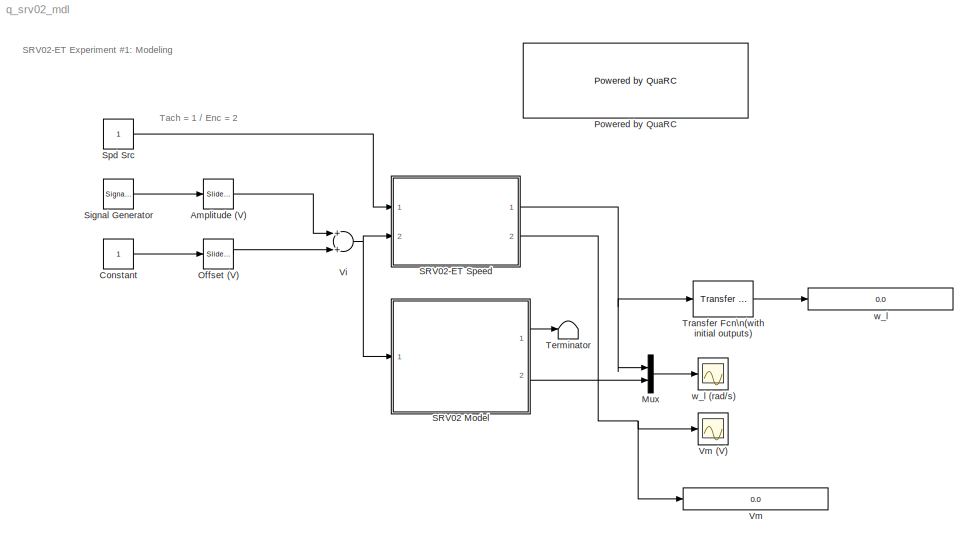
MODEL q_srv02_mdl
KIND model
BLOCK [Reference] Amplitude (V)  REF=simulink/Math\nOperations/Slider\nGain
  FunctionWithSeparateData = off
  Ports = [1, 1]
  RTWMemSecDataConstants = Inherit from model
  RTWMemSecDataInternal = Inherit from model
  RTWMemSecDataParameters = Inherit from model
  RTWMemSecFuncExecute = Inherit from model
  RTWMemSecFuncInitTerm = Inherit from model
  ShowPortLabels = FromPortIcon
  SourceBlock = simulink/Math\nOperations/Slider\nGain
  SourceType = Slider Gain
  SystemSampleTime = -1
  gain = 0
  high = 5
  low = 0
BLOCK [Constant] Constant
  OutDataType = sfix(16)
  OutScaling = 2^0
BLOCK [Mux] Mux
  DisplayOption = bar
  Inputs = 2
  Ports = [2, 1]
BLOCK [Reference] Offset (V)  REF=simulink/Math\nOperations/Slider\nGain
  FunctionWithSeparateData = off
  Ports = [1, 1]
  RTWMemSecDataConstants = Inherit from model
  RTWMemSecDataInternal = Inherit from model
  RTWMemSecDataParameters = Inherit from model
  RTWMemSecFuncExecute = Inherit from model
  RTWMemSecFuncInitTerm = Inherit from model
  ShowPortLabels = FromPortIcon
  SourceBlock = simulink/Math\nOperations/Slider\nGain
  SourceType = Slider Gain
  SystemSampleTime = -1
  gain = 2
  high = 5
  low = -5
BLOCK [Reference] Powered by QuaRC  REF=quarc_library/Logos/Powered by QuaRC
  FunctionWithSeparateData = off
  Ports = []
  RTWMemSecDataConstants = Inherit from model
  RTWMemSecDataInternal = Inherit from model
  RTWMemSecDataParameters = Inherit from model
  RTWMemSecFuncExecute = Inherit from model
  RTWMemSecFuncInitTerm = Inherit from model
  ShowPortLabels = FromPortIcon
  SourceBlock = quarc_library/Logos/Powered by QuaRC
  SourceType = Quanser WinCon Logo
  SystemSampleTime = -1
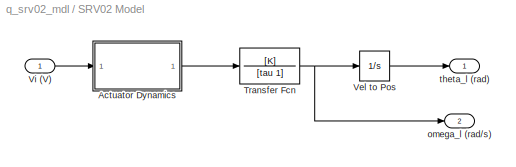
BLOCK [SubSystem] SRV02 Model
  FunctionWithSeparateData = off
  MinAlgLoopOccurrences = off
  Ports = [1, 2]
  RTWSystemCode = Auto
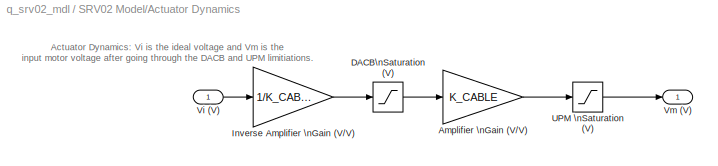
BLOCK [SubSystem] SRV02 Model/Actuator Dynamics
  FunctionWithSeparateData = off
  MinAlgLoopOccurrences = off
  Ports = [1, 1]
  RTWSystemCode = Auto
BLOCK [Gain] SRV02 Model/Actuator Dynamics/Amplifier \nGain (V//V)
  Gain = K_CABLE
  OutDataType = sfix(16)
  OutDataTypeMode = Inherit via internal rule
  OutScaling = 2^0
  ParameterDataType = sfix(16)
  ParameterDataTypeMode = Inherit via internal rule
  ParameterScaling = 2^0
  SaturateOnIntegerOverflow = off
BLOCK [Saturate] SRV02 Model/Actuator Dynamics/DACB\nSaturation (V)
  LowerLimit = -VMAX_DAC
  UpperLimit = VMAX_DAC
BLOCK [Gain] SRV02 Model/Actuator Dynamics/Inverse Amplifier \nGain (V//V)
  Gain = 1/K_CABLE
  OutDataType = sfix(16)
  OutDataTypeMode = Inherit via internal rule
  OutScaling = 2^0
  ParameterDataType = sfix(16)
  ParameterDataTypeMode = Inherit via internal rule
  ParameterScaling = 2^0
  SaturateOnIntegerOverflow = off
BLOCK [Saturate] SRV02 Model/Actuator Dynamics/UPM \nSaturation (V)
  LowerLimit = -VMAX_UPM
  UpperLimit = VMAX_UPM
BLOCK [Inport] SRV02 Model/Actuator Dynamics/Vi (V)
  IconDisplay = Port number
  OutDataType = sfix(16)
  OutScaling = 2^0
BLOCK [Outport] SRV02 Model/Actuator Dynamics/Vm (V)
  IconDisplay = Port number
  OutDataType = sfix(16)
  OutScaling = 2^0
BLOCK [TransferFcn] SRV02 Model/Transfer Fcn
  Denominator = [tau 1]
  Numerator = [K]
BLOCK [Integrator] SRV02 Model/Vel to Pos
  Ports = [1, 1]
BLOCK [Inport] SRV02 Model/Vi (V)
  IconDisplay = Port number
  OutDataType = sfix(16)
  OutScaling = 2^0
BLOCK [Outport] SRV02 Model/omega_l (rad//s)
  IconDisplay = Port number
  OutDataType = sfix(16)
  OutScaling = 2^0
  Port = 2
BLOCK [Outport] SRV02 Model/theta_l (rad)
  IconDisplay = Port number
  OutDataType = sfix(16)
  OutScaling = 2^0
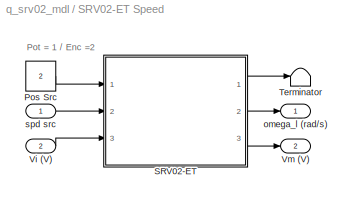
BLOCK [SubSystem] SRV02-ET Speed
  FunctionWithSeparateData = off
  MinAlgLoopOccurrences = off
  Ports = [2, 2]
  RTWSystemCode = Auto
BLOCK [Constant] SRV02-ET Speed/Pos Src
  OutDataType = sfix(16)
  OutScaling = 2^0
  Value = 2
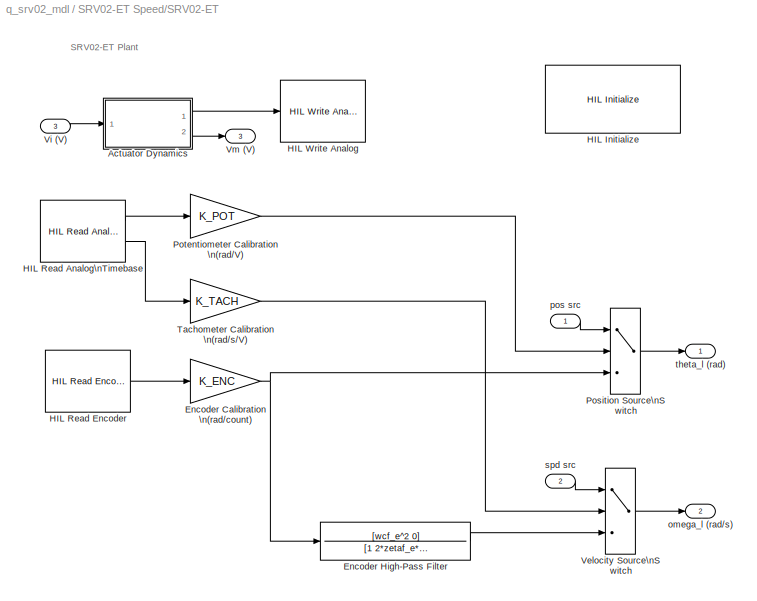
BLOCK [SubSystem] SRV02-ET Speed/SRV02-ET
  FunctionWithSeparateData = off
  MinAlgLoopOccurrences = off
  Ports = [3, 3]
  RTWSystemCode = Auto
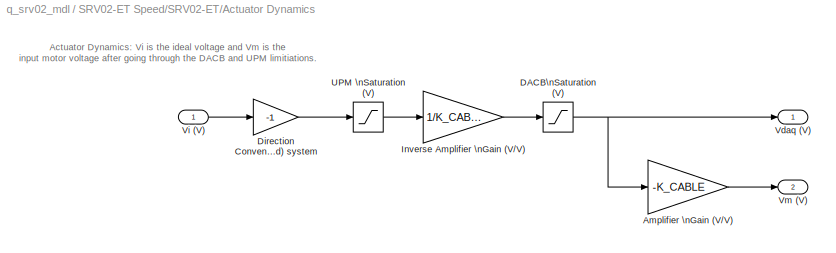
BLOCK [SubSystem] SRV02-ET Speed/SRV02-ET/Actuator Dynamics
  FunctionWithSeparateData = off
  MinAlgLoopOccurrences = off
  Ports = [1, 2]
  RTWSystemCode = Auto
BLOCK [Gain] SRV02-ET Speed/SRV02-ET/Actuator Dynamics/Amplifier \nGain (V//V)
  Gain = -K_CABLE
  OutDataType = sfix(16)
  OutDataTypeMode = Inherit via internal rule
  OutScaling = 2^0
  ParameterDataType = sfix(16)
  ParameterDataTypeMode = Inherit via internal rule
  ParameterScaling = 2^0
  SaturateOnIntegerOverflow = off
BLOCK [Saturate] SRV02-ET Speed/SRV02-ET/Actuator Dynamics/DACB\nSaturation (V)
  LowerLimit = -VMAX_DAC
  UpperLimit = VMAX_DAC
BLOCK [Gain] SRV02-ET Speed/SRV02-ET/Actuator Dynamics/Direction Convention:\n(Right-Hand) system
  Gain = -1
  OutDataType = sfix(16)
  OutScaling = 2^0
  ParameterDataType = sfix(16)
  ParameterScaling = 2^0
BLOCK [Gain] SRV02-ET Speed/SRV02-ET/Actuator Dynamics/Inverse Amplifier \nGain (V//V)
  Gain = 1/K_CABLE
  OutDataType = sfix(16)
  OutDataTypeMode = Inherit via internal rule
  OutScaling = 2^0
  ParameterDataType = sfix(16)
  ParameterDataTypeMode = Inherit via internal rule
  ParameterScaling = 2^0
  SaturateOnIntegerOverflow = off
BLOCK [Saturate] SRV02-ET Speed/SRV02-ET/Actuator Dynamics/UPM \nSaturation (V)
  LowerLimit = -VMAX_UPM
  UpperLimit = VMAX_UPM
BLOCK [Outport] SRV02-ET Speed/SRV02-ET/Actuator Dynamics/Vdaq (V)
  IconDisplay = Port number
  OutDataType = sfix(16)
  OutScaling = 2^0
BLOCK [Inport] SRV02-ET Speed/SRV02-ET/Actuator Dynamics/Vi (V)
  IconDisplay = Port number
  OutDataType = sfix(16)
  OutScaling = 2^0
BLOCK [Outport] SRV02-ET Speed/SRV02-ET/Actuator Dynamics/Vm (V)
  IconDisplay = Port number
  OutDataType = sfix(16)
  OutScaling = 2^0
  Port = 2
BLOCK [Gain] SRV02-ET Speed/SRV02-ET/Encoder Calibration \n(rad//count)
  Gain = K_ENC
  OutDataType = sfix(16)
  OutScaling = 2^0
  ParameterDataType = sfix(16)
  ParameterScaling = 2^0
BLOCK [TransferFcn] SRV02-ET Speed/SRV02-ET/Encoder High-Pass Filter
  Denominator = [1 2*zetaf_e*wcf_e wcf_e^2]
  Numerator = [wcf_e^2 0]
BLOCK [Reference] SRV02-ET Speed/SRV02-ET/HIL Initialize  REF=quarc_library/Data Acquisition/Generic/Configuration/HIL Initialize
  AttributesFormatString = %<object_name>
  Ports = []
  SourceBlock = quarc_library/Data Acquisition/Generic/Configuration/HIL Initialize
  SourceType = HIL Initialize
  active = on
  analog_input_channels = 0:7
  analog_input_maximums = 10
  analog_input_minimums = -10
  analog_output_channels = 0:7
  analog_output_maximums = 10
  analog_output_minimums = -10
  board_number = 0
  board_type = q8
  clock_modes = [0 0]
  digital_input_channels = []
  digital_output_channels = []
  encoder_channels = 0:7
  encoder_filter_frequency = (1/60e-9)/1
  final_analog_outputs = 0
  final_digital_outputs = 1
  final_other_outputs = []
  final_pwm_outputs = 0
  hardware_clocks = 0:1
  initial_analog_outputs = 0
  initial_digital_outputs = 1
  initial_encoder_counts = 0
  initial_other_outputs = []
  initial_pwm_outputs = 0
  object_name = HIL-1
  other_output_channels = []
  pwm_channels = []
  pwm_frequency = (1/60e-9)/1024
  pwm_modes = 0
  quadrature = 4
  set_analog_input_params_at_start = on
  set_analog_input_params_at_switch_in = off
  set_analog_output_params_at_start = on
  set_analog_output_params_at_switch_in = off
  set_analog_outputs_at_start = on
  set_analog_outputs_at_switch_in = off
  set_analog_outputs_at_switch_out = off
  set_analog_outputs_at_terminate = on
  set_analog_outputs_on_watchdog = off
  set_clock_params_at_start = on
  set_clock_params_at_switch_in = off
  set_digital_outputs_at_start = on
  set_digital_outputs_at_switch_in = off
  set_digital_outputs_at_switch_out = off
  set_digital_outputs_at_terminate = on
  set_digital_outputs_on_watchdog = off
  set_encoder_counts_at_start = on
  set_encoder_counts_at_switch_in = off
  set_encoder_params_at_start = on
  set_encoder_params_at_switch_in = off
  set_other_outputs_at_start = on
  set_other_outputs_at_switch_in = off
  set_other_outputs_at_switch_out = off
  set_other_outputs_at_terminate = on
  set_other_outputs_on_watchdog = off
  set_pwm_outputs_at_start = on
  set_pwm_outputs_at_switch_in = off
  set_pwm_outputs_at_switch_out = off
  set_pwm_outputs_at_terminate = on
  set_pwm_outputs_on_watchdog = off
  set_pwm_params_at_start = on
  set_pwm_params_at_switch_in = off
  watchdog_analog_outputs = 0
  watchdog_digital_outputs = 0
  watchdog_other_outputs = 0
  watchdog_pwm_outputs = 0
BLOCK [Reference] SRV02-ET Speed/SRV02-ET/HIL Read Analog\nTimebase  REF=quarc_library/Data Acquisition/Generic/Timebases/HIL Read Analog\nTimebase
  AttributesFormatString = (%<object_name>)
  Ports = [0, 2]
  SourceBlock = quarc_library/Data Acquisition/Generic/Timebases/HIL Read Analog\nTimebase
  SourceType = HIL Read Analog Timebase
  Tag = unassigned
  UserData = DataTag0
  UserDataPersistent = on
  active = on
  channels = [0,2]
  clock = 0
  object_name = HIL-1
  samples_in_buffer = max(ceil(1/qc_get_step_size), 1)
  vector_output = off
BLOCK [Reference] SRV02-ET Speed/SRV02-ET/HIL Read Encoder  REF=quarc_library/Data Acquisition/Generic/Immediate I//O/HIL Read Encoder
  AttributesFormatString = (%<object_name>)
  Ports = [0, 1]
  SourceBlock = quarc_library/Data Acquisition/Generic/Immediate I//O/HIL Read Encoder
  SourceType = HIL Read Encoder
  Tag = unassigned
  UserData = DataTag1
  UserDataPersistent = on
  active = on
  channels = 0
  data_type = double
  data_type_mode = Inherit via back propagation
  object_name = HIL-1
  sample_time = qc_get_step_size
  vector_output = off
BLOCK [Reference] SRV02-ET Speed/SRV02-ET/HIL Write Analog  REF=quarc_library/Data Acquisition/Generic/Immediate I//O/HIL Write Analog
  AttributesFormatString = (%<object_name>)
  Ports = [1]
  SourceBlock = quarc_library/Data Acquisition/Generic/Immediate I//O/HIL Write Analog
  SourceType = HIL Write Analog
  Tag = unassigned
  UserData = DataTag2
  UserDataPersistent = on
  active = off
  channels = 0
  object_name = HIL-1
  sample_time = -1
  vector_input = off
BLOCK [MultiPortSwitch] SRV02-ET Speed/SRV02-ET/Position Source\nSwitch
  InputSameDT = off
  Inputs = 2
  Ports = [3, 1]
  SaturateOnIntegerOverflow = off
BLOCK [Gain] SRV02-ET Speed/SRV02-ET/Potentiometer Calibration \n(rad//V)
  Gain = K_POT
  OutDataType = sfix(16)
  OutScaling = 2^0
  ParameterDataType = sfix(16)
  ParameterScaling = 2^0
BLOCK [Gain] SRV02-ET Speed/SRV02-ET/Tachometer Calibration \n(rad//s//V)
  Gain = K_TACH
  OutDataType = sfix(16)
  OutScaling = 2^0
  ParameterDataType = sfix(16)
  ParameterScaling = 2^0
BLOCK [MultiPortSwitch] SRV02-ET Speed/SRV02-ET/Velocity Source\nSwitch
  InputSameDT = off
  Inputs = 2
  Ports = [3, 1]
  SaturateOnIntegerOverflow = off
BLOCK [Inport] SRV02-ET Speed/SRV02-ET/Vi (V)
  IconDisplay = Port number
  OutDataType = sfix(16)
  OutScaling = 2^0
  Port = 3
BLOCK [Outport] SRV02-ET Speed/SRV02-ET/Vm (V)
  IconDisplay = Port number
  InitialOutput = 0
  OutDataType = sfix(16)
  OutScaling = 2^0
  Port = 3
BLOCK [Outport] SRV02-ET Speed/SRV02-ET/omega_l (rad//s)
  IconDisplay = Port number
  InitialOutput = 0
  OutDataType = sfix(16)
  OutScaling = 2^0
  Port = 2
BLOCK [Inport] SRV02-ET Speed/SRV02-ET/pos src
  IconDisplay = Port number
  OutDataType = sfix(16)
  OutScaling = 2^0
BLOCK [Inport] SRV02-ET Speed/SRV02-ET/spd src
  IconDisplay = Port number
  OutDataType = sfix(16)
  OutScaling = 2^0
  Port = 2
BLOCK [Outport] SRV02-ET Speed/SRV02-ET/theta_l (rad)
  IconDisplay = Port number
  InitialOutput = 0
  OutDataType = sfix(16)
  OutScaling = 2^0
BLOCK [Terminator] SRV02-ET Speed/Terminator
BLOCK [Inport] SRV02-ET Speed/Vi (V)
  IconDisplay = Port number
  OutDataType = sfix(16)
  OutScaling = 2^0
  Port = 2
BLOCK [Outport] SRV02-ET Speed/Vm (V)
  IconDisplay = Port number
  OutDataType = sfix(16)
  OutScaling = 2^0
  Port = 2
BLOCK [Outport] SRV02-ET Speed/omega_l (rad//s)
  IconDisplay = Port number
  OutDataType = sfix(16)
  OutScaling = 2^0
BLOCK [Inport] SRV02-ET Speed/spd src
  IconDisplay = Port number
  OutDataType = sfix(16)
  OutScaling = 2^0
BLOCK [SignalGenerator] Signal Generator
  Amplitude = 0
  Ports = [0, 1]
BLOCK [Constant] Spd Src
  OutDataType = sfix(16)
  OutScaling = 2^0
BLOCK [Terminator] Terminator
BLOCK [Reference] Transfer Fcn\n(with initial outputs)  REF=simulink_extras/Additional\nLinear/Transfer Fcn\n(with initial outputs)
  D = [1  1]
  FunctionWithSeparateData = off
  N = [1]
  Ports = [1, 1]
  RTWMemSecDataConstants = Inherit from model
  RTWMemSecDataInternal = Inherit from model
  RTWMemSecDataParameters = Inherit from model
  RTWMemSecFuncExecute = Inherit from model
  RTWMemSecFuncInitTerm = Inherit from model
  ShowPortLabels = FromPortIcon
  SourceBlock = simulink_extras/Additional\nLinear/Transfer Fcn\n(with initial outputs)
  SourceType = Transfer Function with Initial Outputs
  SystemSampleTime = -1
  U0 = 0
  Y0 = .5
BLOCK [Sum] Vi
  CollapseMode = All dimensions
  InputSameDT = off
  OutDataType = sfix(16)
  OutDataTypeMode = Inherit via internal rule
  OutScaling = 2^-10
  Ports = [2, 1]
  SaturateOnIntegerOverflow = off
BLOCK [Display] Vm
  Decimation = 100
  Format = long
  Lockdown = off
  Ports = [1]
BLOCK [Scope] Vm (V)
  DataFormat = Array
  Floating = off
  NumInputPorts = 1
  Ports = [1]
  SampleTime = 0
  SaveName = Vm
  SaveToWorkspace = on
  TimeRange = 5
BLOCK [Display] w_l
  Decimation = 100
  Format = long
  Lockdown = off
  Ports = [1]
BLOCK [Scope] w_l (rad//s)
  DataFormat = Array
  Floating = off
  NumInputPorts = 1
  Ports = [1]
  SampleTime = 0
  SaveName = wl
  SaveToWorkspace = on
  TimeRange = 5
  YMax = 3.5
  YMin = -3.5
ANNOTATION (root): SRV02-ET Experiment #1: Modeling
ANNOTATION (root): Tach = 1 / Enc = 2
ANNOTATION SRV02 Model/Actuator Dynamics: Actuator Dynamics: Vi is the ideal voltage and Vm is the \ninput motor voltage after going through the DACB and UPM limitiations.
ANNOTATION SRV02-ET Speed: Pot = 1 / Enc =2
ANNOTATION SRV02-ET Speed/SRV02-ET: SRV02-ET Plant
ANNOTATION SRV02-ET Speed/SRV02-ET/Actuator Dynamics: Actuator Dynamics: Vi is the ideal voltage and Vm is the \ninput motor voltage after going through the DACB and UPM limitiations.
LINE Amplitude (V):1 -> Vi:1
LINE Constant:1 -> Offset (V):1
LINE Mux:1 -> w_l (rad//s):1
LINE Offset (V):1 -> Vi:2
LINE SRV02 Model/Actuator Dynamics/Amplifier \nGain (V//V):1 -> SRV02 Model/Actuator Dynamics/UPM \nSaturation (V):1
LINE SRV02 Model/Actuator Dynamics/DACB\nSaturation (V):1 -> SRV02 Model/Actuator Dynamics/Amplifier \nGain (V//V):1
LINE SRV02 Model/Actuator Dynamics/Inverse Amplifier \nGain (V//V):1 -> SRV02 Model/Actuator Dynamics/DACB\nSaturation (V):1
LINE SRV02 Model/Actuator Dynamics/UPM \nSaturation (V):1 -> SRV02 Model/Actuator Dynamics/Vm (V):1
LINE SRV02 Model/Actuator Dynamics/Vi (V):1 -> SRV02 Model/Actuator Dynamics/Inverse Amplifier \nGain (V//V):1
LINE SRV02 Model/Actuator Dynamics:1 -> SRV02 Model/Transfer Fcn:1
NET SRV02 Model/Transfer Fcn:1 -> SRV02 Model/Vel to Pos:1, SRV02 Model/omega_l (rad//s):1
LINE SRV02 Model/Vel to Pos:1 -> SRV02 Model/theta_l (rad):1
LINE SRV02 Model/Vi (V):1 -> SRV02 Model/Actuator Dynamics:1
LINE SRV02 Model:1 -> Terminator:1
LINE SRV02 Model:2 -> Mux:2
LINE SRV02-ET Speed/Pos Src:1 -> SRV02-ET Speed/SRV02-ET:1
LINE SRV02-ET Speed/SRV02-ET/Actuator Dynamics/Amplifier \nGain (V//V):1 -> SRV02-ET Speed/SRV02-ET/Actuator Dynamics/Vm (V):1
NET SRV02-ET Speed/SRV02-ET/Actuator Dynamics/DACB\nSaturation (V):1 -> SRV02-ET Speed/SRV02-ET/Actuator Dynamics/Amplifier \nGain (V//V):1, SRV02-ET Speed/SRV02-ET/Actuator Dynamics/Vdaq (V):1
LINE SRV02-ET Speed/SRV02-ET/Actuator Dynamics/Direction Convention:\n(Right-Hand) system:1 -> SRV02-ET Speed/SRV02-ET/Actuator Dynamics/UPM \nSaturation (V):1
LINE SRV02-ET Speed/SRV02-ET/Actuator Dynamics/Inverse Amplifier \nGain (V//V):1 -> SRV02-ET Speed/SRV02-ET/Actuator Dynamics/DACB\nSaturation (V):1
LINE SRV02-ET Speed/SRV02-ET/Actuator Dynamics/UPM \nSaturation (V):1 -> SRV02-ET Speed/SRV02-ET/Actuator Dynamics/Inverse Amplifier \nGain (V//V):1
LINE SRV02-ET Speed/SRV02-ET/Actuator Dynamics/Vi (V):1 -> SRV02-ET Speed/SRV02-ET/Actuator Dynamics/Direction Convention:\n(Right-Hand) system:1
LINE SRV02-ET Speed/SRV02-ET/Actuator Dynamics:1 -> SRV02-ET Speed/SRV02-ET/HIL Write Analog:1
LINE SRV02-ET Speed/SRV02-ET/Actuator Dynamics:2 -> SRV02-ET Speed/SRV02-ET/Vm (V):1
NET SRV02-ET Speed/SRV02-ET/Encoder Calibration \n(rad//count):1 -> SRV02-ET Speed/SRV02-ET/Encoder High-Pass Filter:1, SRV02-ET Speed/SRV02-ET/Position Source\nSwitch:3
LINE SRV02-ET Speed/SRV02-ET/Encoder High-Pass Filter:1 -> SRV02-ET Speed/SRV02-ET/Velocity Source\nSwitch:3
LINE SRV02-ET Speed/SRV02-ET/HIL Read Analog\nTimebase:1 -> SRV02-ET Speed/SRV02-ET/Potentiometer Calibration \n(rad//V):1
LINE SRV02-ET Speed/SRV02-ET/HIL Read Analog\nTimebase:2 -> SRV02-ET Speed/SRV02-ET/Tachometer Calibration \n(rad//s//V):1
LINE SRV02-ET Speed/SRV02-ET/HIL Read Encoder:1 -> SRV02-ET Speed/SRV02-ET/Encoder Calibration \n(rad//count):1
LINE SRV02-ET Speed/SRV02-ET/Position Source\nSwitch:1 -> SRV02-ET Speed/SRV02-ET/theta_l (rad):1
LINE SRV02-ET Speed/SRV02-ET/Potentiometer Calibration \n(rad//V):1 -> SRV02-ET Speed/SRV02-ET/Position Source\nSwitch:2
LINE SRV02-ET Speed/SRV02-ET/Tachometer Calibration \n(rad//s//V):1 -> SRV02-ET Speed/SRV02-ET/Velocity Source\nSwitch:2
LINE SRV02-ET Speed/SRV02-ET/Velocity Source\nSwitch:1 -> SRV02-ET Speed/SRV02-ET/omega_l (rad//s):1
LINE SRV02-ET Speed/SRV02-ET/Vi (V):1 -> SRV02-ET Speed/SRV02-ET/Actuator Dynamics:1
LINE SRV02-ET Speed/SRV02-ET/pos src:1 -> SRV02-ET Speed/SRV02-ET/Position Source\nSwitch:1
LINE SRV02-ET Speed/SRV02-ET/spd src:1 -> SRV02-ET Speed/SRV02-ET/Velocity Source\nSwitch:1
LINE SRV02-ET Speed/SRV02-ET:1 -> SRV02-ET Speed/Terminator:1
LINE SRV02-ET Speed/SRV02-ET:2 -> SRV02-ET Speed/omega_l (rad//s):1
LINE SRV02-ET Speed/SRV02-ET:3 -> SRV02-ET Speed/Vm (V):1
LINE SRV02-ET Speed/Vi (V):1 -> SRV02-ET Speed/SRV02-ET:3
LINE SRV02-ET Speed/spd src:1 -> SRV02-ET Speed/SRV02-ET:2
NET SRV02-ET Speed:1 -> Mux:1, Transfer Fcn\n(with initial outputs):1
NET SRV02-ET Speed:2 -> Vm (V):1, Vm:1
LINE Signal Generator:1 -> Amplitude (V):1
LINE Spd Src:1 -> SRV02-ET Speed:1
LINE Transfer Fcn\n(with initial outputs):1 -> w_l:1
NET Vi:1 -> SRV02 Model:1, SRV02-ET Speed:2
note: NET lines group one-source signal fan-out (src -> all destinations, sorted); 1:1 wires keep LINE
